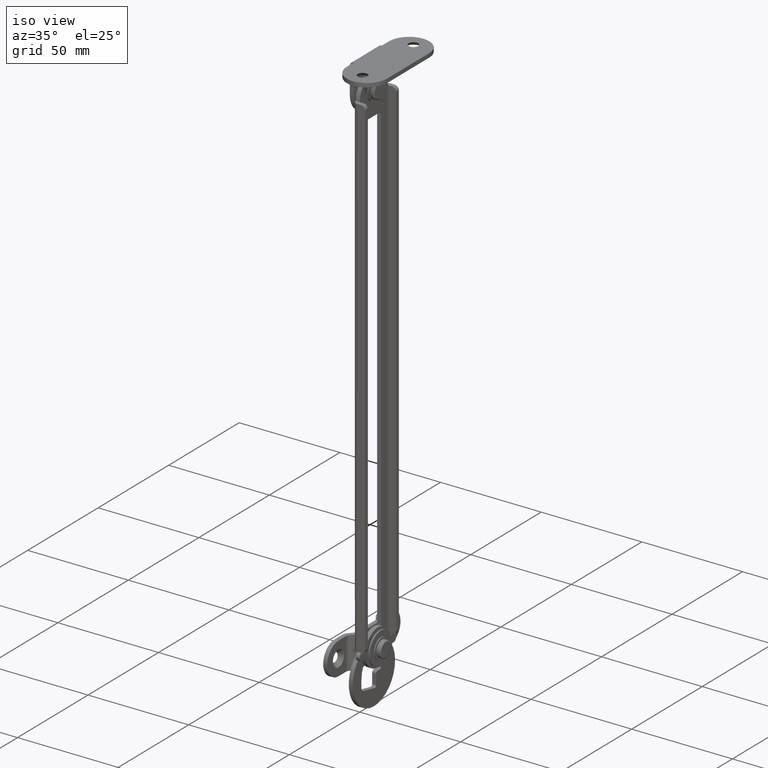
[diagram: clean part render]
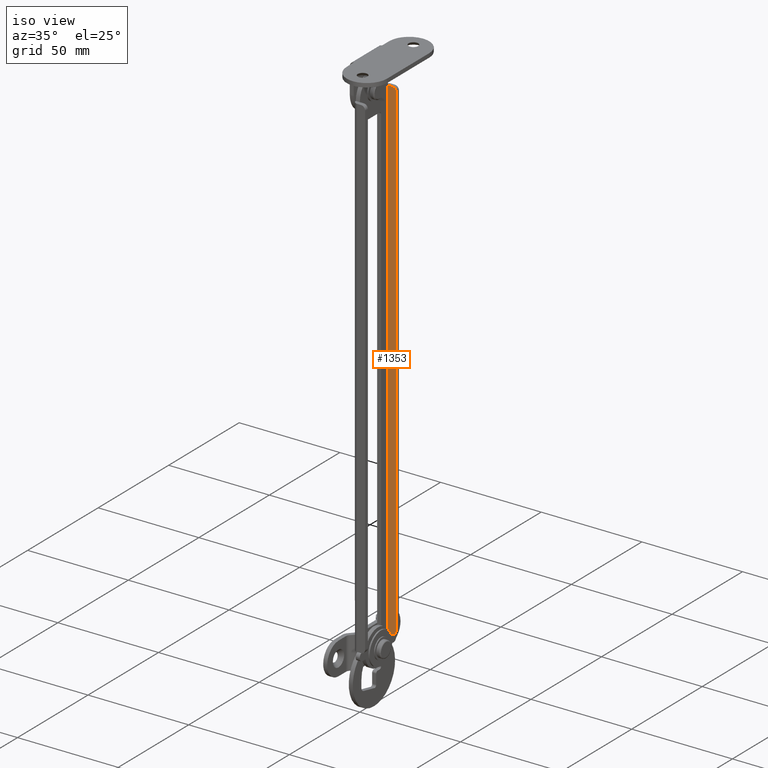
[diagram: same view with one face highlighted and labeled with its STEP entity id]
A machine part, iso view. The second image highlights one B-rep face of the part: STEP entity #1353.
In plain terms, the highlighted face is a freeform B-spline surface patch.
Its self-contained STEP definition (entity closure, byte-faithful):
#517=CARTESIAN_POINT('',(11.000000000000121,10.0,-246.000014999999990));
#518=VERTEX_POINT('',#517);
#519=CARTESIAN_POINT('',(9.000000000000119,10.0,-248.000014999999990));
#520=VERTEX_POINT('',#519);
#521=CARTESIAN_POINT('',(11.000000000000121,10.0,-246.000014999999990));
#522=CARTESIAN_POINT('',(11.000490234363330,10.000000000000011,-246.294652707779900));
#523=CARTESIAN_POINT('',(10.904230548586760,9.999999999999995,-246.719635499251890));
#524=CARTESIAN_POINT('',(10.549263681910910,10.000000000000020,-247.312040469684800));
#525=CARTESIAN_POINT('',(9.980930316522500,9.999999999999966,-247.827458011029110));
#526=CARTESIAN_POINT('',(9.360172636823233,10.000000000000041,-248.000994243077400));
#527=CARTESIAN_POINT('',(9.000000000000119,10.0,-248.000014999999990));
#528=B_SPLINE_CURVE_WITH_KNOTS('',3,(#521,#522,#523,#524,#525,#526,#527),.UNSPECIFIED.,.F.,.U.,(4,1,1,1,4),(0.000000612371958,0.883680045041761,1.276446416477612,2.061832786546134,3.141907766615735),.UNSPECIFIED.);
#529=EDGE_CURVE('',#518,#520,#528,.T.);
#628=CARTESIAN_POINT('',(9.000000000000119,10.0,-2.0));
#629=VERTEX_POINT('',#628);
#635=CARTESIAN_POINT('',(11.000000000000121,10.0,-4.0));
#636=VERTEX_POINT('',#635);
#637=CARTESIAN_POINT('',(9.000000000000119,10.0,-2.0));
#638=CARTESIAN_POINT('',(9.360163756788486,9.999999999999993,-1.999046275693557));
#639=CARTESIAN_POINT('',(9.980934011531318,10.000000000000020,-2.172526236804379));
#640=CARTESIAN_POINT('',(10.573986212333100,9.999999999999988,-2.710402665021095));
#641=CARTESIAN_POINT('',(10.915182788985311,10.000000000000020,-3.312967306267052));
#642=CARTESIAN_POINT('',(11.000291255788680,9.999999999999975,-3.738156055119748));
#643=CARTESIAN_POINT('',(11.000000000000121,10.0,-4.0));
#644=B_SPLINE_CURVE_WITH_KNOTS('',3,(#637,#638,#639,#640,#641,#642,#643),.UNSPECIFIED.,.F.,.U.,(4,1,1,1,4),(0.000000612372467,1.080075592442033,1.865461962510310,2.356430978054862,3.141907766615641),.UNSPECIFIED.);
#645=EDGE_CURVE('',#629,#636,#644,.T.);
#1288=CARTESIAN_POINT('',(11.000000000000121,10.0,-4.0));
#1289=CARTESIAN_POINT('',(11.000000000000121,10.0,-246.000014999999990));
#1290=QUASI_UNIFORM_CURVE('',1,(#1288,#1289),.UNSPECIFIED.,.F.,.U.);
#1291=EDGE_CURVE('',#636,#518,#1290,.T.);
#1308=CARTESIAN_POINT('',(7.0,10.0,-248.000014999999990));
#1309=VERTEX_POINT('',#1308);
#1310=CARTESIAN_POINT('',(9.000000000000119,10.0,-248.000014999999990));
#1311=CARTESIAN_POINT('',(7.0,10.0,-248.000014999999990));
#1312=QUASI_UNIFORM_CURVE('',1,(#1310,#1311),.UNSPECIFIED.,.F.,.U.);
#1313=EDGE_CURVE('',#520,#1309,#1312,.T.);
#1330=CARTESIAN_POINT('',(11.199799992247350,10.0,-260.287715272454310));
#1331=CARTESIAN_POINT('',(11.199799992247350,10.0,10.287706870688810));
#1332=CARTESIAN_POINT('',(6.800199900464409,10.0,-260.287715272454310));
#1333=CARTESIAN_POINT('',(6.800199900464409,10.0,10.287706870688810));
#1334=B_SPLINE_SURFACE_WITH_KNOTS('',1,1,((#1330,#1332),(#1331,#1333)),.UNSPECIFIED.,.F.,.F.,.U.,(2,2),(2,2),(0.0,270.575422143142990),(0.0,4.399600091782941),.UNSPECIFIED.);
#1335=CARTESIAN_POINT('',(7.0,10.0,-2.0));
#1336=VERTEX_POINT('',#1335);
#1337=CARTESIAN_POINT('',(9.000000000000119,10.0,-2.0));
#1338=CARTESIAN_POINT('',(7.0,10.0,-2.0));
#1339=QUASI_UNIFORM_CURVE('',1,(#1337,#1338),.UNSPECIFIED.,.F.,.U.);
#1340=EDGE_CURVE('',#629,#1336,#1339,.T.);
#1341=ORIENTED_EDGE('',*,*,#1340,.T.);
#1342=CARTESIAN_POINT('',(7.0,10.0,-2.0));
#1343=CARTESIAN_POINT('',(7.0,10.0,-248.000014999999990));
#1344=QUASI_UNIFORM_CURVE('',1,(#1342,#1343),.UNSPECIFIED.,.F.,.U.);
#1345=EDGE_CURVE('',#1336,#1309,#1344,.T.);
#1346=ORIENTED_EDGE('',*,*,#1345,.T.);
#1347=ORIENTED_EDGE('',*,*,#1313,.F.);
#1348=ORIENTED_EDGE('',*,*,#529,.F.);
#1349=ORIENTED_EDGE('',*,*,#1291,.F.);
#1350=ORIENTED_EDGE('',*,*,#645,.F.);
#1351=EDGE_LOOP('',(#1341,#1346,#1347,#1348,#1349,#1350));
#1352=FACE_OUTER_BOUND('',#1351,.T.);
#1353=ADVANCED_FACE('',(#1352),#1334,.T.);